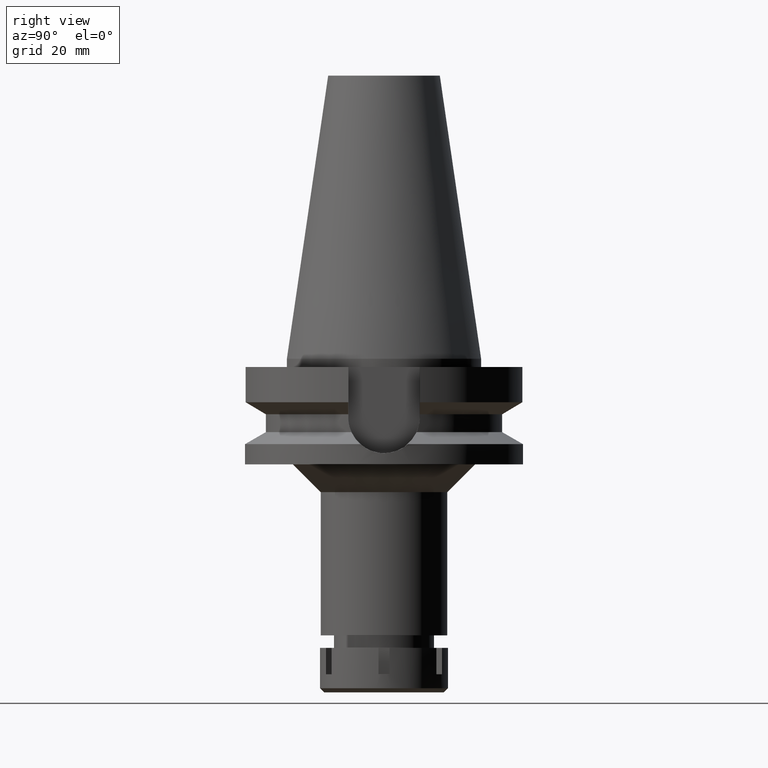
[diagram: clean part render]
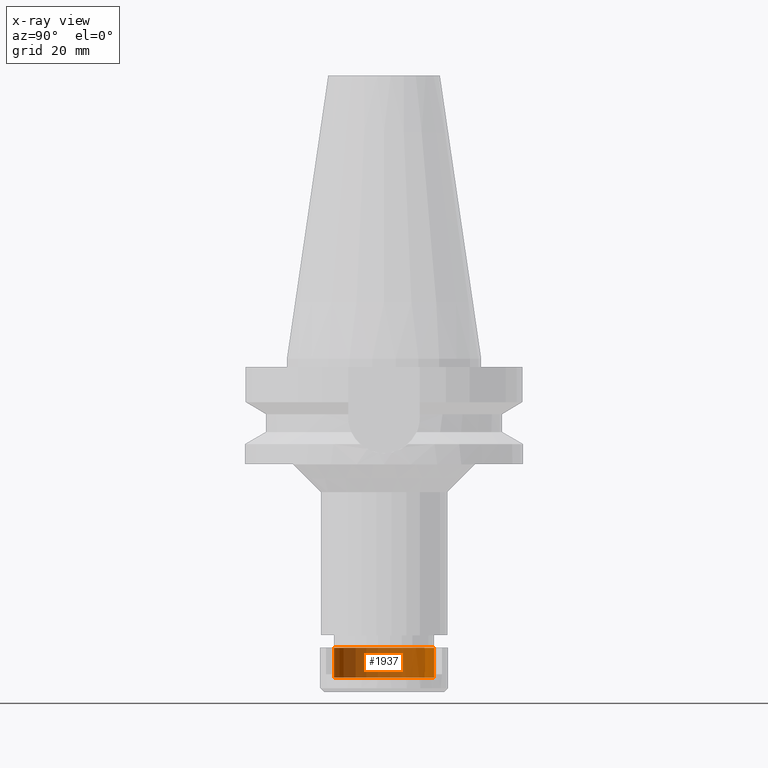
[diagram: x-ray — body ghosted, one internal face saturated and labeled with its STEP entity id]
A machine part, right view, then the same camera in x-ray: the body is ghosted and one INTERNAL B-rep face — a face not visible from any outside direction — is saturated and labeled: STEP entity #1937.
In plain terms, the highlighted cylindrical surface (partial cylindrical patch) has radius 18 mm, axis along (0, 0, -1).
Its self-contained STEP definition (entity closure, byte-faithful):
#40 = EDGE_LOOP ( 'NONE', ( #2347, #2866, #1606, #2811 ) ) ;
#75 = LINE ( 'NONE', #1518, #956 ) ;
#204 = VECTOR ( 'NONE', #2335, 1000.000000000000000 ) ;
#207 = AXIS2_PLACEMENT_3D ( 'NONE', #958, #2125, #1545 ) ;
#223 = EDGE_CURVE ( 'NONE', #1574, #2126, #1712, .T. ) ;
#247 = CARTESIAN_POINT ( 'NONE',  ( 0.0000000000000000000, 0.0000000000000000000, 0.0000000000000000000 ) ) ;
#385 = CIRCLE ( 'NONE', #207, 18.00000000000000000 ) ;
#495 = AXIS2_PLACEMENT_3D ( 'NONE', #3383, #2558, #3094 ) ;
#556 = CARTESIAN_POINT ( 'NONE',  ( 0.0000000000000000000, -18.00000000000000000, 0.0000000000000000000 ) ) ;
#816 = CARTESIAN_POINT ( 'NONE',  ( 0.0000000000000000000, -18.00000000000000000, -10.80000000000000071 ) ) ;
#823 = EDGE_CURVE ( 'NONE', #2517, #1574, #385, .T. ) ;
#956 = VECTOR ( 'NONE', #2673, 1000.000000000000000 ) ;
#958 = CARTESIAN_POINT ( 'NONE',  ( 0.0000000000000000000, 0.0000000000000000000, -10.80000000000000071 ) ) ;
#1122 = CYLINDRICAL_SURFACE ( 'NONE', #2224, 18.00000000000000000 ) ;
#1404 = DIRECTION ( 'NONE',  ( 0.0000000000000000000, 0.0000000000000000000, -1.000000000000000000 ) ) ;
#1518 = CARTESIAN_POINT ( 'NONE',  ( 0.0000000000000000000, -18.00000000000000000, -10.80000000000000071 ) ) ;
#1545 = DIRECTION ( 'NONE',  ( 0.0000000000000000000, -1.000000000000000000, 0.0000000000000000000 ) ) ;
#1574 = VERTEX_POINT ( 'NONE', #2506 ) ;
#1606 = ORIENTED_EDGE ( 'NONE', *, *, #823, .T. ) ;
#1618 = CIRCLE ( 'NONE', #495, 18.00000000000000000 ) ;
#1712 = LINE ( 'NONE', #2079, #204 ) ;
#1937 = ADVANCED_FACE ( 'NONE', ( #2528 ), #1122, .F. ) ;
#2079 = CARTESIAN_POINT ( 'NONE',  ( 0.0000000000000000000, 18.00000000000000000, -10.80000000000000071 ) ) ;
#2125 = DIRECTION ( 'NONE',  ( 0.0000000000000000000, 0.0000000000000000000, -1.000000000000000000 ) ) ;
#2126 = VERTEX_POINT ( 'NONE', #2171 ) ;
#2171 = CARTESIAN_POINT ( 'NONE',  ( 0.0000000000000000000, 18.00000000000000000, 0.0000000000000000000 ) ) ;
#2224 = AXIS2_PLACEMENT_3D ( 'NONE', #247, #1404, #3422 ) ;
#2335 = DIRECTION ( 'NONE',  ( 0.0000000000000000000, 0.0000000000000000000, 1.000000000000000000 ) ) ;
#2347 = ORIENTED_EDGE ( 'NONE', *, *, #2663, .T. ) ;
#2506 = CARTESIAN_POINT ( 'NONE',  ( 0.0000000000000000000, 18.00000000000000000, -10.80000000000000071 ) ) ;
#2517 = VERTEX_POINT ( 'NONE', #816 ) ;
#2528 = FACE_OUTER_BOUND ( 'NONE', #40, .T. ) ;
#2558 = DIRECTION ( 'NONE',  ( 0.0000000000000000000, 0.0000000000000000000, 1.000000000000000000 ) ) ;
#2663 = EDGE_CURVE ( 'NONE', #2126, #3495, #1618, .T. ) ;
#2673 = DIRECTION ( 'NONE',  ( 0.0000000000000000000, 0.0000000000000000000, 1.000000000000000000 ) ) ;
#2811 = ORIENTED_EDGE ( 'NONE', *, *, #223, .T. ) ;
#2866 = ORIENTED_EDGE ( 'NONE', *, *, #3631, .F. ) ;
#3094 = DIRECTION ( 'NONE',  ( 0.0000000000000000000, 1.000000000000000000, 0.0000000000000000000 ) ) ;
#3383 = CARTESIAN_POINT ( 'NONE',  ( 0.0000000000000000000, 0.0000000000000000000, 0.0000000000000000000 ) ) ;
#3422 = DIRECTION ( 'NONE',  ( 0.0000000000000000000, -1.000000000000000000, 0.0000000000000000000 ) ) ;
#3495 = VERTEX_POINT ( 'NONE', #556 ) ;
#3631 = EDGE_CURVE ( 'NONE', #2517, #3495, #75, .T. ) ;